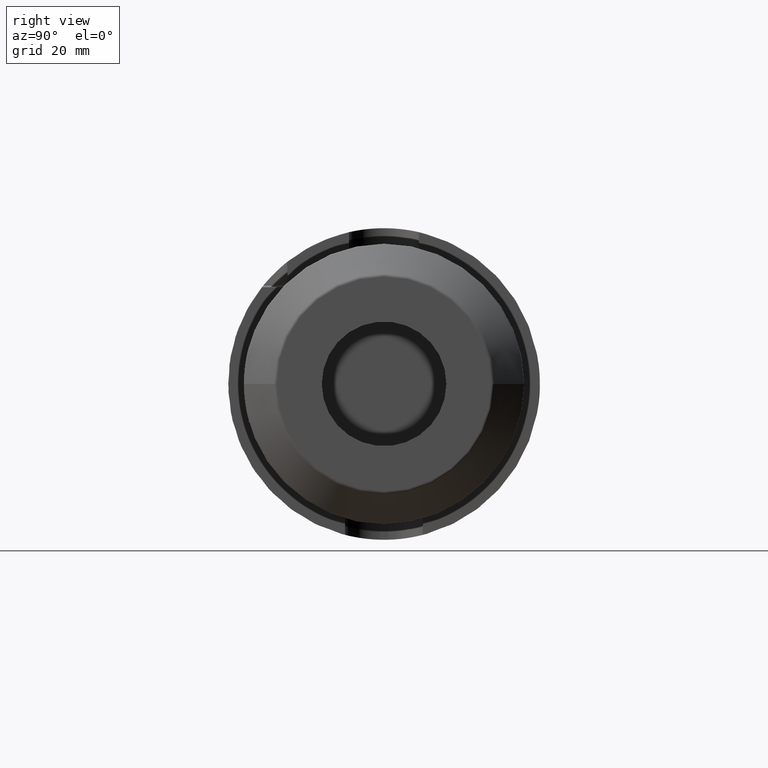
[diagram: clean part render]
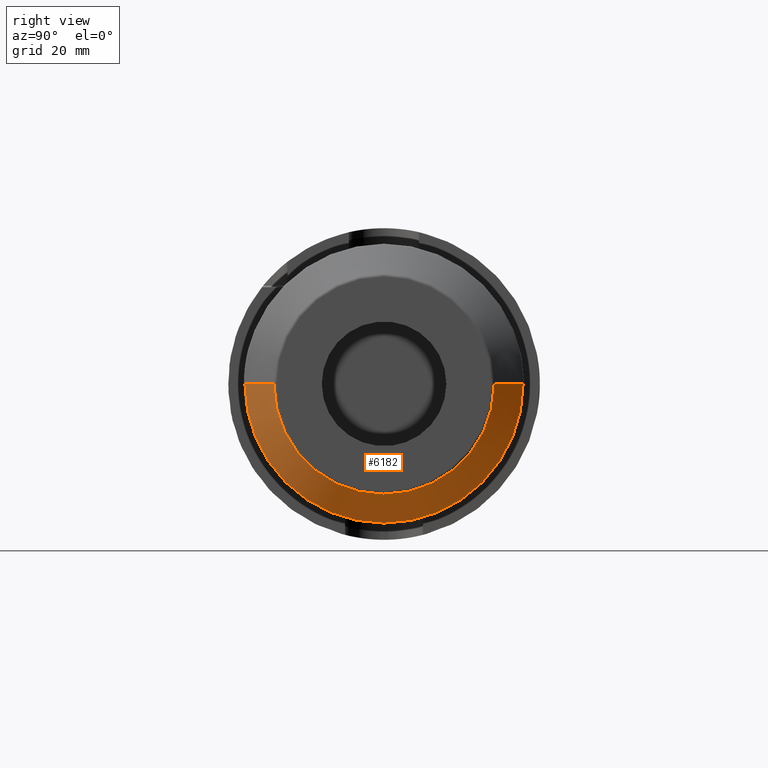
[diagram: same view with one face highlighted and labeled with its STEP entity id]
A machine part, right view. The second image highlights one B-rep face of the part: STEP entity #6182.
In plain terms, the highlighted conical surface has half-angle 45 deg.
Its self-contained STEP definition (entity closure, byte-faithful):
#2355=CARTESIAN_POINT('',(1.097071067812E2,0.E0,0.E0));
#2356=DIRECTION('',(-1.E0,0.E0,0.E0));
#2357=DIRECTION('',(0.E0,1.E0,0.E0));
#2358=AXIS2_PLACEMENT_3D('',#2355,#2356,#2357);
#2360=DIRECTION('',(-7.071067811865E-1,7.071067811865E-1,4.028184647636E-14));
#2361=VECTOR('',#2360,1.048528137424E1);
#2362=CARTESIAN_POINT('',(1.097071067812E2,2.829289321881E1,
-2.797990364058E-14));
#2363=LINE('',#2362,#2361);
#2364=CARTESIAN_POINT('',(1.022928932188E2,0.E0,0.E0));
#2365=DIRECTION('',(-1.E0,0.E0,0.E0));
#2366=DIRECTION('',(0.E0,1.E0,0.E0));
#2367=AXIS2_PLACEMENT_3D('',#2364,#2365,#2366);
#2369=DIRECTION('',(-7.071067811865E-1,-7.071067811865E-1,-4.102152092396E-14));
#2370=VECTOR('',#2369,1.048528137424E1);
#2371=CARTESIAN_POINT('',(1.097071067812E2,-2.829289321881E1,
2.711715305955E-14));
#2372=LINE('',#2371,#2370);
#3625=CARTESIAN_POINT('',(1.097071067812E2,2.829289321881E1,0.E0));
#3626=CARTESIAN_POINT('',(1.097071067812E2,-2.829289321881E1,0.E0));
#3627=VERTEX_POINT('',#3625);
#3628=VERTEX_POINT('',#3626);
#3637=CARTESIAN_POINT('',(1.022928932188E2,3.570710678119E1,0.E0));
#3638=CARTESIAN_POINT('',(1.022928932188E2,-3.570710678119E1,0.E0));
#3639=VERTEX_POINT('',#3637);
#3640=VERTEX_POINT('',#3638);
#6168=CARTESIAN_POINT('',(1.06E2,0.E0,0.E0));
#6169=DIRECTION('',(-1.E0,0.E0,0.E0));
#6170=DIRECTION('',(0.E0,1.E0,0.E0));
#6171=AXIS2_PLACEMENT_3D('',#6168,#6169,#6170);
#6172=CONICAL_SURFACE('',#6171,3.2E1,4.5E1);
#6174=ORIENTED_EDGE('',*,*,#6173,.F.);
#6176=ORIENTED_EDGE('',*,*,#6175,.T.);
#6177=ORIENTED_EDGE('',*,*,#6162,.T.);
#6179=ORIENTED_EDGE('',*,*,#6178,.F.);
#6180=EDGE_LOOP('',(#6174,#6176,#6177,#6179));
#6181=FACE_OUTER_BOUND('',#6180,.F.);
#6182=ADVANCED_FACE('',(#6181),#6172,.T.);
#2359=CIRCLE('',#2358,2.829289321881E1);
#2368=CIRCLE('',#2367,3.570710678119E1);
#6162=EDGE_CURVE('',#3639,#3640,#2368,.T.);
#6173=EDGE_CURVE('',#3627,#3628,#2359,.T.);
#6175=EDGE_CURVE('',#3627,#3639,#2363,.T.);
#6178=EDGE_CURVE('',#3628,#3640,#2372,.T.);